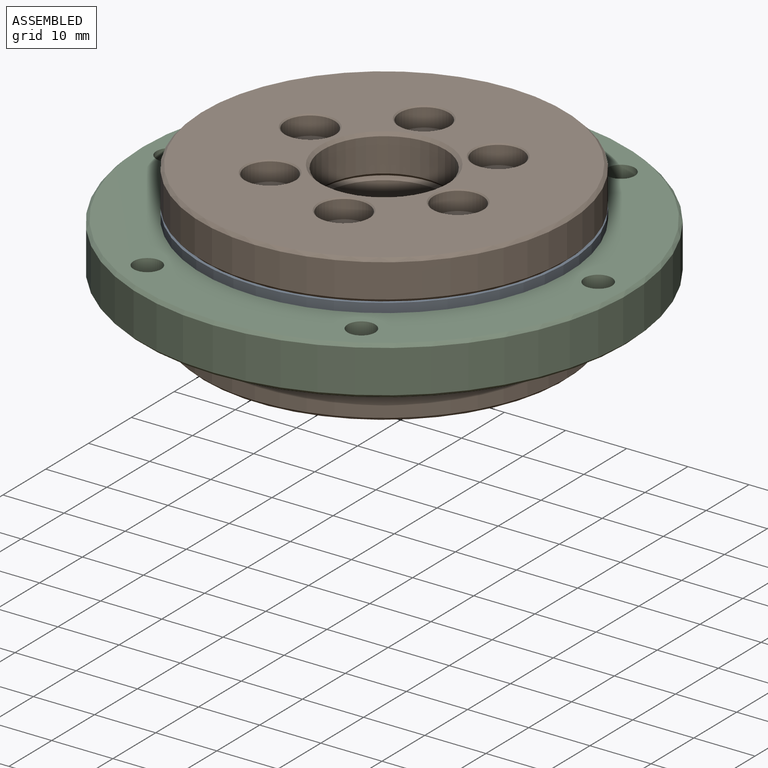
[diagram: assembled view]
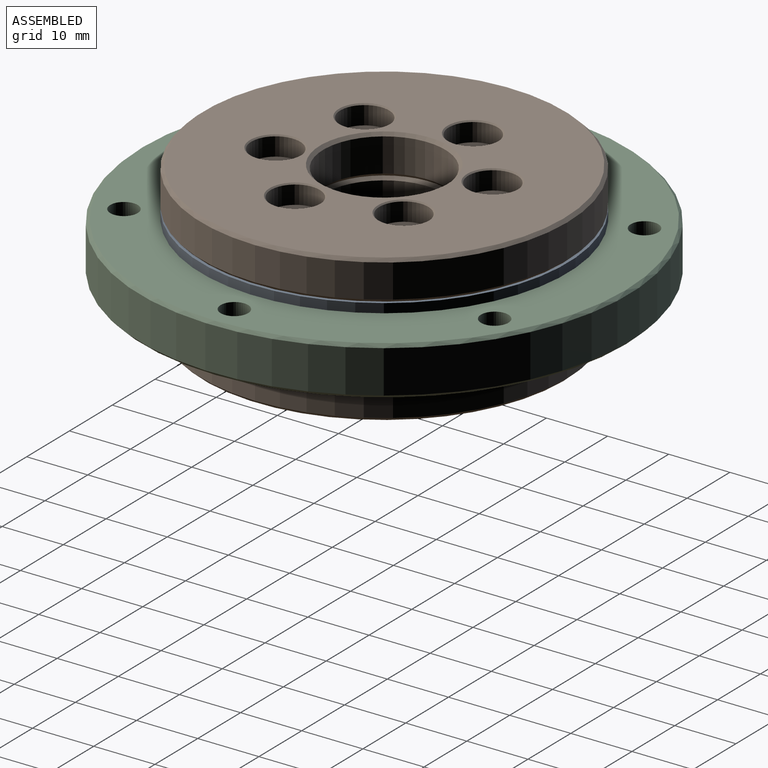
[diagram: assembled view, second angle]
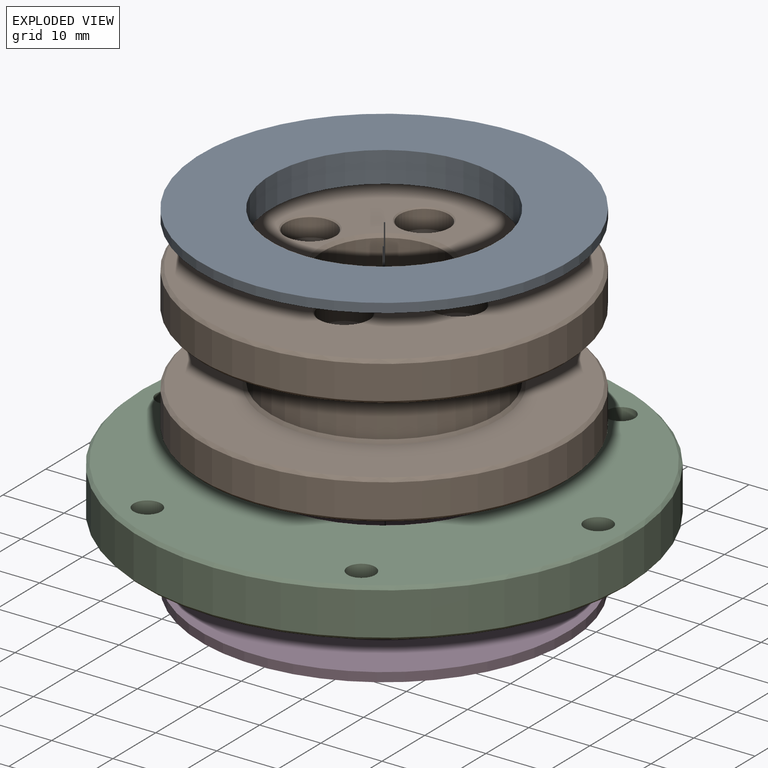
[diagram: exploded view]
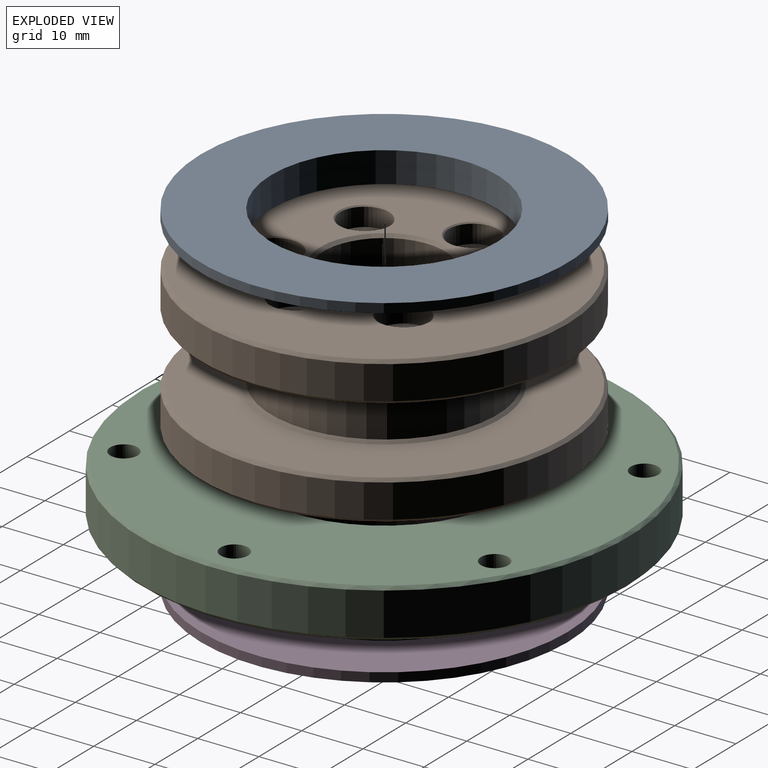
[diagram: exploded view, second angle]
ASSEMBLY  parts=4 mates=3
PART A: 6 faces, bbox 60x60x5 mm
  f0: plane 40x40mm, normal (0,0,1), area 181.4mm2, adj f1,f5
  f1: cylinder r=18.5mm len=37mm, axis (0,0,1), area 581.2mm2, adj f0,f2
  f2: plane 60x60mm, normal (0,0,-1), area 1752.2mm2, adj f1,f3
  f3: cylinder r=30mm len=60mm, axis (0,0,1), area 282.7mm2, adj f2,f4
  f4: plane 60x60mm, normal (0,0,1), area 1570.8mm2, adj f3,f5
  f5: cylinder r=20mm len=40mm, axis (0,0,1), area 439.8mm2, adj f0,f4
PART B: 73 faces, bbox 60x60x24 mm
  f0: plane 4.5x4.5mm, normal (0,0,1), area 3.3mm2, adj f1,f32
  f1: cylinder r=2.25mm len=4.5mm, axis (0,0,1), area 43.8mm2, adj f0,f72
  f2: plane 59x59mm, normal (0,0,1), area 1599.9mm2, adj f17,f20
  f3: cylinder r=18.5mm len=37mm, axis (0,0,1), area 1162.4mm2, adj f16,f17
  f4: cylinder r=30mm len=60mm, axis (0,0,1), area 1036.7mm2, adj f19,f20
  f5: plane 59x59mm, normal (0,0,-1), area 2312.2mm2, adj f8,f19,f22,f30,f33,f36,f39,f42
  f6: cylinder r=10mm len=20mm, axis (0,0,1), area 1036.7mm2, adj f7,f8
  f7: cone r=10.5mm half-angle=45deg, axis (0,0,1), area 45.5mm2, adj f6,f21
  f8: cone r=10mm half-angle=45deg, axis (0,0,-1), area 45.5mm2, adj f5,f6
  f9: cylinder r=10mm len=20mm, axis (0,0,1), area 345.6mm2, adj f10,f21
  f10: cone r=10.5mm half-angle=45deg, axis (0,0,1), area 45.5mm2, adj f9,f12
  f11: plane 59x59mm, normal (0,0,-1), area 1716.1mm2, adj f15,f16
  f12: plane 59x59mm, normal (0,0,1), area 2055.1mm2, adj f10,f13,f29,f50,f51,f57,f63,f69
  f13: cone r=30mm half-angle=45deg, axis (0,0,-1), area 132.2mm2, adj f12,f14
  f14: cylinder r=30mm len=60mm, axis (0,0,1), area 1036.7mm2, adj f13,f15
  f15: cone r=29.5mm half-angle=45deg, axis (0,0,1), area 132.2mm2, adj f11,f14
  f16: cone r=18.5mm half-angle=45deg, axis (0,0,-1), area 81.1mm2, adj f3,f11
  f17: cone r=19mm half-angle=45deg, axis (0,0,-1), area 83.3mm2, adj f2,f3
  f18: cone r=2mm half-angle=45deg, axis (0,0,1), area 6.1mm2, adj f23,f24
  f19: cone r=29.5mm half-angle=45deg, axis (0,0,1), area 132.2mm2, adj f4,f5
  f20: cone r=30mm half-angle=45deg, axis (0,0,-1), area 132.2mm2, adj f2,f4
  f21: cone r=10mm half-angle=45deg, axis (0,0,-1), area 45.5mm2, adj f7,f9
  f22: cone r=1.62mm half-angle=45deg, axis (0,0,-1), area 6.1mm2, adj f5,f23
  f23: cylinder r=1.62mm len=16.74mm, axis (0,0,1), area 170.5mm2, adj f18,f22
  f24: plane 4.5x4.5mm, normal (0,0,1), area 3.3mm2, adj f18,f25
  f25: cylinder r=2.25mm len=4.5mm, axis (0,0,1), area 43.8mm2, adj f24,f26
  f26: cone r=2.45mm half-angle=45deg, axis (0,0,1), area 4.2mm2, adj f25,f27
  f27: plane 8x8mm, normal (0,0,1), area 31.4mm2, adj f26,f28
  f28: cylinder r=4mm len=8mm, axis (0,0,1), area 75.4mm2, adj f27,f29
  f29: cone r=4.2mm half-angle=45deg, axis (0,0,1), area 7.3mm2, adj f12,f28
  f30: cone r=1.62mm half-angle=45deg, axis (0,0,-1), area 6.1mm2, adj f5,f31
  f31: cylinder r=1.62mm len=16.74mm, axis (0,0,1), area 170.5mm2, adj f30,f32
  f32: cone r=2mm half-angle=45deg, axis (0,0,1), area 6.1mm2, adj f0,f31
  f33: cone r=1.62mm half-angle=45deg, axis (0,0,-1), area 6.1mm2, adj f5,f34
  f34: cylinder r=1.62mm len=16.74mm, axis (0,0,1), area 170.5mm2, adj f33,f35
  f35: cone r=2mm half-angle=45deg, axis (0,0,1), area 6.1mm2, adj f34,f68
  f36: cone r=1.62mm half-angle=45deg, axis (0,0,-1), area 6.1mm2, adj f5,f37
  f37: cylinder r=1.62mm len=16.74mm, axis (0,0,1), area 170.5mm2, adj f36,f38
  f38: cone r=2mm half-angle=45deg, axis (0,0,1), area 6.1mm2, adj f37,f62
  f39: cone r=1.62mm half-angle=45deg, axis (0,0,-1), area 6.1mm2, adj f5,f40
  f40: cylinder r=1.62mm len=16.74mm, axis (0,0,1), area 170.5mm2, adj f39,f41
  f41: cone r=2mm half-angle=45deg, axis (0,0,1), area 6.1mm2, adj f40,f56
  f42: cone r=1.62mm half-angle=45deg, axis (0,0,-1), area 6.1mm2, adj f5,f43
  f43: cylinder r=1.62mm len=16.74mm, axis (0,0,1), area 170.5mm2, adj f42,f44
  f44: cone r=2mm half-angle=45deg, axis (0,0,1), area 6.1mm2, adj f43,f45
  f45: plane 4.5x4.5mm, normal (0,0,1), area 3.3mm2, adj f44,f46
  f46: cylinder r=2.25mm len=4.5mm, axis (0,0,1), area 43.8mm2, adj f45,f47
  f47: cone r=2.45mm half-angle=45deg, axis (0,0,1), area 4.2mm2, adj f46,f48
  f48: plane 8x8mm, normal (0,0,1), area 31.4mm2, adj f47,f49
  f49: cylinder r=4mm len=8mm, axis (0,0,1), area 75.4mm2, adj f48,f50
  f50: cone r=4.2mm half-angle=45deg, axis (0,0,1), area 7.3mm2, adj f12,f49
  f51: cone r=4.2mm half-angle=45deg, axis (0,0,1), area 7.3mm2, adj f12,f52
  f52: cylinder r=4mm len=8mm, axis (0,0,1), area 75.4mm2, adj f51,f53
  f53: plane 8x8mm, normal (0,0,1), area 31.4mm2, adj f52,f54
  f54: cone r=2.45mm half-angle=45deg, axis (0,0,1), area 4.2mm2, adj f53,f55
  f55: cylinder r=2.25mm len=4.5mm, axis (0,0,1), area 43.8mm2, adj f54,f56
  f56: plane 4.5x4.5mm, normal (0,0,1), area 3.3mm2, adj f41,f55
  f57: cone r=4.2mm half-angle=45deg, axis (0,0,1), area 7.3mm2, adj f12,f58
  f58: cylinder r=4mm len=8mm, axis (0,0,1), area 75.4mm2, adj f57,f59
  f59: plane 8x8mm, normal (0,0,1), area 31.4mm2, adj f58,f60
  f60: cone r=2.45mm half-angle=45deg, axis (0,0,1), area 4.2mm2, adj f59,f61
  f61: cylinder r=2.25mm len=4.5mm, axis (0,0,1), area 43.8mm2, adj f60,f62
  f62: plane 4.5x4.5mm, normal (0,0,1), area 3.3mm2, adj f38,f61
  f63: cone r=4.2mm half-angle=45deg, axis (0,0,1), area 7.3mm2, adj f12,f64
  f64: cylinder r=4mm len=8mm, axis (0,0,1), area 75.4mm2, adj f63,f65
  f65: plane 8x8mm, normal (0,0,1), area 31.4mm2, adj f64,f66
  f66: cone r=2.45mm half-angle=45deg, axis (0,0,1), area 4.2mm2, adj f65,f67
  f67: cylinder r=2.25mm len=4.5mm, axis (0,0,1), area 43.8mm2, adj f66,f68
  f68: plane 4.5x4.5mm, normal (0,0,1), area 3.3mm2, adj f35,f67
  f69: cone r=4.2mm half-angle=45deg, axis (0,0,1), area 7.3mm2, adj f12,f70
  f70: cylinder r=4mm len=8mm, axis (0,0,1), area 75.4mm2, adj f69,f71
  f71: plane 8x8mm, normal (0,0,1), area 31.4mm2, adj f70,f72
  f72: cone r=2.45mm half-angle=45deg, axis (0,0,1), area 4.2mm2, adj f1,f71
PART C: 14 faces, bbox 80x80x8 mm
  f0: plane 79x79mm, normal (0,0,-1), area 3486mm2, adj f1,f6,f7,f8,f9,f10,f11,f12
  f1: cone r=20mm half-angle=45deg, axis (0,0,-1), area 90mm2, adj f0,f2
  f2: cylinder r=20mm len=40mm, axis (0,0,1), area 879.6mm2, adj f1,f3
  f3: cone r=20.5mm half-angle=45deg, axis (0,0,1), area 90mm2, adj f2,f13
  f4: cylinder r=40mm len=80mm, axis (0,0,1), area 1759.3mm2, adj f5,f6
  f5: cone r=40mm half-angle=45deg, axis (0,0,-1), area 176.6mm2, adj f4,f13
  f6: cone r=39.5mm half-angle=45deg, axis (0,0,1), area 176.6mm2, adj f0,f4
  f7: cylinder r=2.25mm len=8mm, axis (0,0,1), area 113.1mm2, adj f0,f13
  f8: cylinder r=2.25mm len=8mm, axis (0,0,1), area 113.1mm2, adj f0,f13
  f9: cylinder r=2.25mm len=8mm, axis (0,0,1), area 113.1mm2, adj f0,f13
  f10: cylinder r=2.25mm len=8mm, axis (0,0,1), area 113.1mm2, adj f0,f13
  f11: cylinder r=2.25mm len=8mm, axis (0,0,1), area 113.1mm2, adj f0,f13
  f12: cylinder r=2.25mm len=8mm, axis (0,0,1), area 113.1mm2, adj f0,f13
  f13: plane 79x79mm, normal (0,0,1), area 3486mm2, adj f3,f5,f7,f8,f9,f10,f11,f12
PART D: same geometry as A
PLACE A rot(axis=(1,0,0),180deg) t=(3.7,-11.91,-8.55)mm
PLACE B rot(axis=(0,0,1),14.7deg) t=(3.7,-11.91,-20.55)mm
PLACE C rot(axis=(1,0,0),180deg) t=(3.7,-11.91,-8.55)mm
PLACE D t=(3.7,-11.91,-8.55)mm
MATE revolute B.f3 <-> A.f1  axis (0,0,-1) through (3.7,-11.91,-3.05)mm
MATE revolute C.f1 <-> D.f1  axis (0,0,-1) through (3.7,-11.91,-12.55)mm
MATE revolute C.f1 <-> A.f1  axis (0,0,1) through (3.7,-11.91,-4.55)mm
